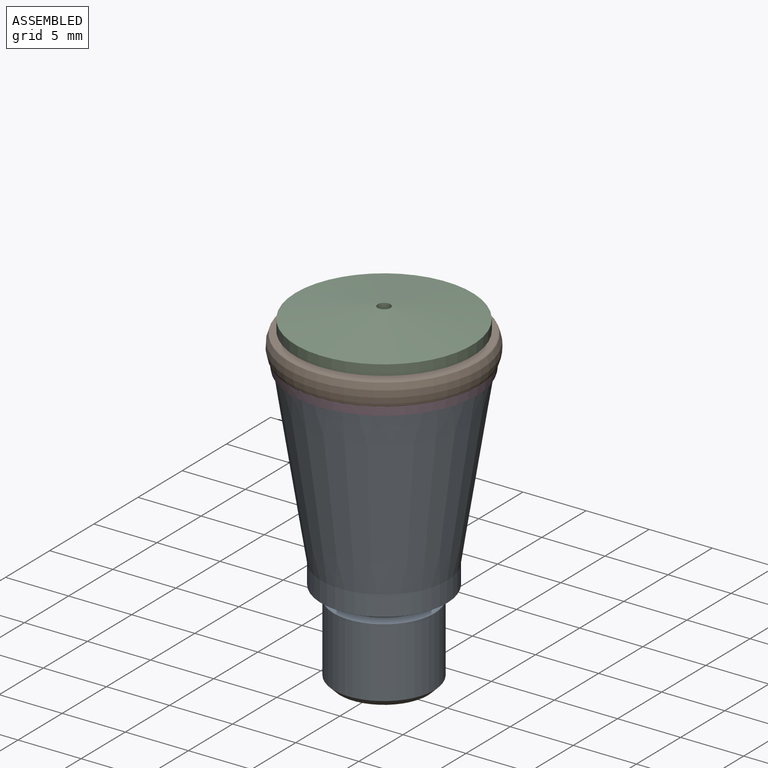
[diagram: assembled view]
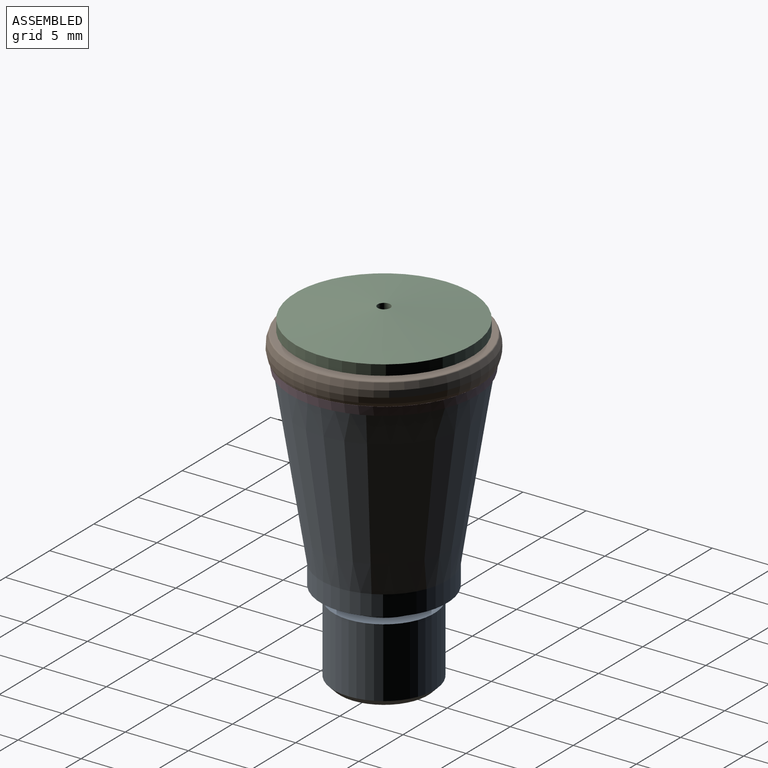
[diagram: assembled view, second angle]
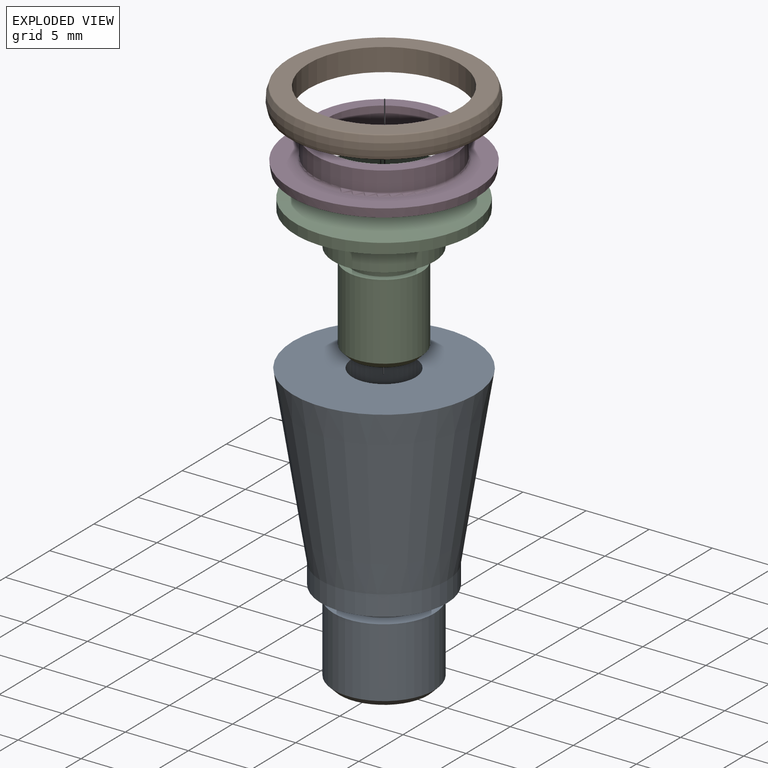
[diagram: exploded view]
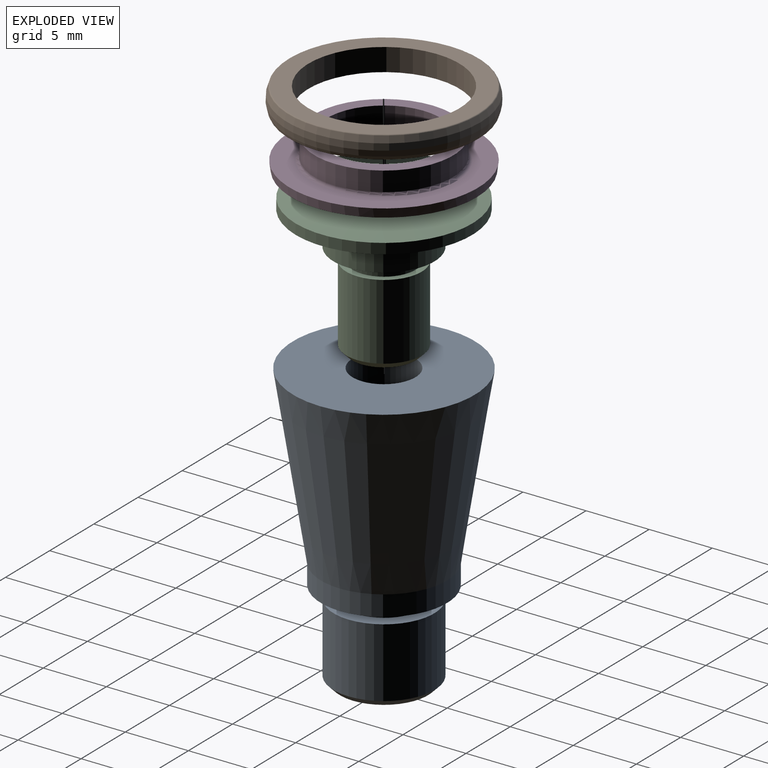
[diagram: exploded view, second angle]
ASSEMBLY  parts=4 mates=5
PART A: 12 faces, bbox 14.4x14.4x22.5 mm
  f0: plane 14.4x14.4mm, normal (0,0,1), area 143.2mm2, adj f3,f9
  f1: cylinder r=0.5mm len=14.5mm, axis (0,0,-1), area 45.6mm2, adj f2,f10
  f2: plane 7x7mm, normal (0,0,-1), area 37.7mm2, adj f1,f11
  f3: cone r=7.2mm half-angle=9deg, axis (0,0,1), area 539mm2, adj f0,f4
  f4: cylinder r=5mm len=10mm, axis (0,0,-1), area 50.6mm2, adj f3,f5
  f5: plane 10x10mm, normal (0,0,-1), area 50.3mm2, adj f4,f6
  f6: cylinder r=3mm len=6mm, axis (0,0,-1), area 18.8mm2, adj f5,f7
  f7: plane 8x8mm, normal (0,0,1), area 22mm2, adj f6,f8
  f8: cylinder r=4mm len=8mm, axis (0,0,-1), area 138.2mm2, adj f7,f11
  f9: cylinder r=2.5mm len=8mm, axis (0,0,1), area 125.7mm2, adj f0,f10
  f10: plane 5x5mm, normal (0,0,1), area 18.8mm2, adj f1,f9
  f11: cone r=3.5mm half-angle=45deg, axis (0,0,1), area 16.7mm2, adj f2,f8
PART B: 6 faces, bbox 16.7x16.7x2.8 mm
  f0: plane 14.85x14.85mm, normal (0,0,1), area 60.5mm2, adj f3,f4
  f1: torus R=5.7mm, axis (0,0,-1), area 83.4mm2, adj f4,f5
  f2: plane 14.85x14.85mm, normal (0,0,-1), area 60.5mm2, adj f3,f5
  f3: cylinder r=5.99mm len=11.97mm, axis (0,0,-1), area 67.7mm2, adj f0,f2
  f4: torus R=7.42mm, axis (0,0,1), area 5.3mm2, adj f0,f1
  f5: torus R=7.42mm, axis (0,0,1), area 5.3mm2, adj f1,f2
PART C: 11 faces, bbox 14x14x11.9 mm
  f0: cone r=0mm half-angle=82deg, axis (0,0,-1), area 154.7mm2, adj f2,f10
  f1: plane 5x5mm, normal (0,0,-1), area 18.8mm2, adj f9,f10
  f2: cylinder r=7mm len=14mm, axis (0,0,-1), area 35.9mm2, adj f0,f3
  f3: plane 14x14mm, normal (0,0,-1), area 103.7mm2, adj f2,f4
  f4: cylinder r=4mm len=8mm, axis (0,0,-1), area 67.9mm2, adj f3,f5
  f5: plane 8x8mm, normal (0,0,-1), area 30.6mm2, adj f4,f6
  f6: cylinder r=2.5mm len=5mm, axis (0,0,-1), area 15.7mm2, adj f5,f7
  f7: plane 6x6mm, normal (0,0,1), area 8.6mm2, adj f6,f8
  f8: cylinder r=3mm len=6mm, axis (0,0,-1), area 113.1mm2, adj f7,f9
  f9: cone r=3mm half-angle=45deg, axis (0,0,1), area 12.2mm2, adj f1,f8
  f10: cylinder r=0.5mm len=11.93mm, axis (0,0,-1), area 37.5mm2, adj f0,f1
PART D: 8 faces, bbox 14.9x14.9x2.5 mm
  f0: plane 11x11mm, normal (0,0,1), area 31.4mm2, adj f1,f4
  f1: cylinder r=4.5mm len=9mm, axis (0,0,-1), area 63.6mm2, adj f0,f6
  f2: plane 14.72x14.72mm, normal (0,0,-1), area 99.3mm2, adj f5,f6
  f3: plane 14.92x14.92mm, normal (0,0,1), area 70.9mm2, adj f5,f7
  f4: cylinder r=5.5mm len=11mm, axis (0,0,1), area 53.6mm2, adj f0,f7
  f5: cone r=7.5mm half-angle=8deg, axis (0,0,1), area 32.9mm2, adj f2,f3
  f6: torus R=4.75mm, axis (0,0,1), area 11.3mm2, adj f1,f2
  f7: torus R=5.75mm, axis (0,0,1), area 13.8mm2, adj f3,f4
PLACE A at identity
PLACE B t=(0,0,24.1)mm
PLACE C t=(0,0,15)mm
PLACE D t=(0,0,22.5)mm
MATE cylindrical D.f1 <-> A.f1  axis (0,0,-1) through (0,0,25)mm
MATE planar D.f1 <-> A.f1  axis (0,0,-1) through (0,0,22.5)mm
MATE cylindrical C.f9 <-> A.f1  axis (0,0,-1) through (0,0,18.5)mm
MATE planar B.f1 <-> D.f1  axis (0,0,-1) through (0,0,23.2)mm
MATE planar C.f2 <-> A.f1  axis (0,0,-1) through (0,0,22.5)mm
